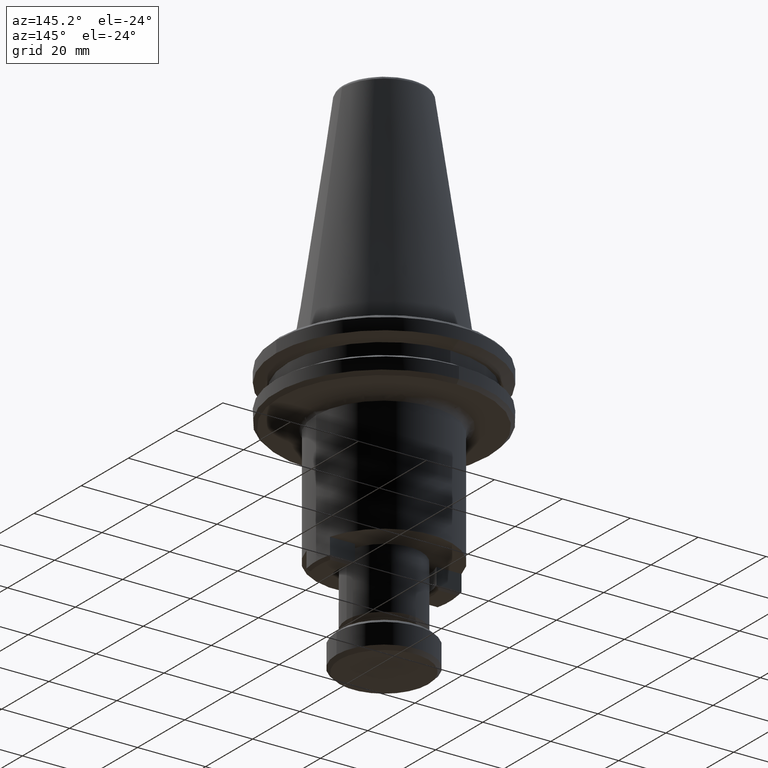
[diagram: clean part render]
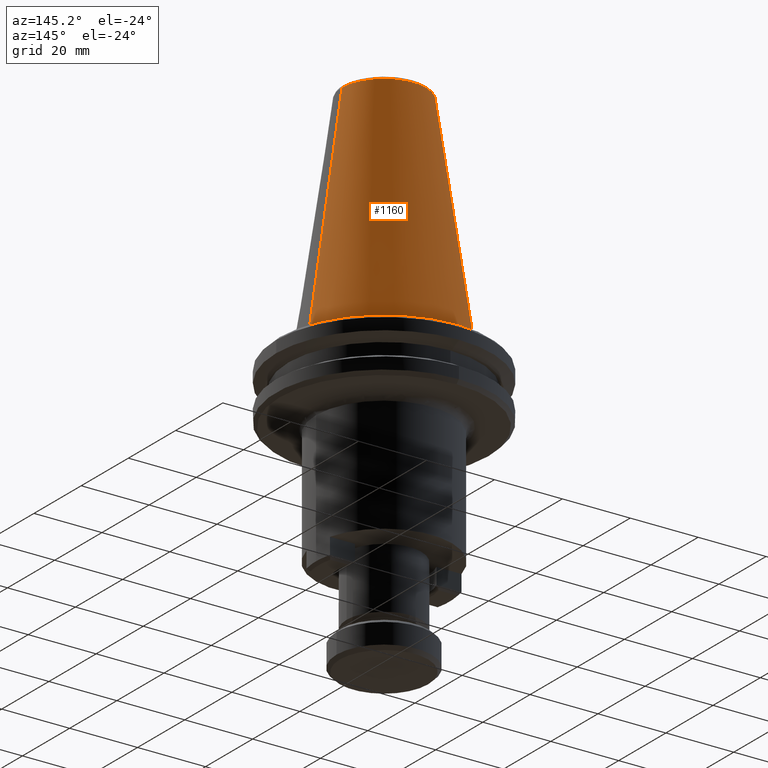
[diagram: same view with one face highlighted and labeled with its STEP entity id]
A machine part, auxiliary view. The second image highlights one B-rep face of the part: STEP entity #1160.
In plain terms, the highlighted conical surface has half-angle 8.297 deg.
Its self-contained STEP definition (entity closure, byte-faithful):
#20 = DIRECTION ( 'NONE',  ( 0.0000000000000000000, 0.0000000000000000000, -1.000000000000000000 ) ) ;
#55 = CARTESIAN_POINT ( 'NONE',  ( 73.31616413349898700, 86.06069101126570300, 154.8121138350913100 ) ) ;
#73 = CARTESIAN_POINT ( 'NONE',  ( 85.69085950949899200, 86.06069101126570300, 154.8121138350913100 ) ) ;
#187 = VERTEX_POINT ( 'NONE', #2088 ) ;
#256 = LINE ( 'NONE', #1892, #395 ) ;
#273 = ORIENTED_EDGE ( 'NONE', *, *, #2254, .T. ) ;
#351 = DIRECTION ( 'NONE',  ( -1.000000000000000000, 0.0000000000000000000, 0.0000000000000000000 ) ) ;
#395 = VECTOR ( 'NONE', #2042, 1000.000000000000100 ) ;
#479 = VERTEX_POINT ( 'NONE', #827 ) ;
#488 = DIRECTION ( 'NONE',  ( -1.000000000000000000, 0.0000000000000000000, 0.0000000000000000000 ) ) ;
#506 = CARTESIAN_POINT ( 'NONE',  ( 73.31616413349898700, 86.06069101126570300, 87.26780560809130800 ) ) ;
#584 = CARTESIAN_POINT ( 'NONE',  ( 73.31616413349898700, 86.06069101126570300, 87.26780560809130800 ) ) ;
#608 = DIRECTION ( 'NONE',  ( -0.0000000000000000000, -0.0000000000000000000, 1.000000000000000000 ) ) ;
#637 = CIRCLE ( 'NONE', #895, 22.22499999999999400 ) ;
#771 = CONICAL_SURFACE ( 'NONE', #2452, 22.22499999999999400, 0.1448138465495947800 ) ;
#827 = CARTESIAN_POINT ( 'NONE',  ( 60.94146875749899600, 86.06069101126570300, 154.8121138350913100 ) ) ;
#857 = FACE_OUTER_BOUND ( 'NONE', #2389, .T. ) ;
#895 = AXIS2_PLACEMENT_3D ( 'NONE', #584, #608, #1179 ) ;
#1144 = CIRCLE ( 'NONE', #1186, 12.37469537600000000 ) ;
#1158 = DIRECTION ( 'NONE',  ( 0.0000000000000000000, 0.0000000000000000000, -1.000000000000000000 ) ) ;
#1160 = ADVANCED_FACE ( 'NONE', ( #857 ), #771, .T. ) ;
#1179 = DIRECTION ( 'NONE',  ( -1.000000000000000000, 0.0000000000000000000, 0.0000000000000000000 ) ) ;
#1186 = AXIS2_PLACEMENT_3D ( 'NONE', #55, #20, #351 ) ;
#1219 = DIRECTION ( 'NONE',  ( -0.1443082272694599400, 0.0000000000000000000, -0.9895327864918603800 ) ) ;
#1229 = CARTESIAN_POINT ( 'NONE',  ( 51.09116413349899900, 86.06069101126570300, 87.26780560809130800 ) ) ;
#1278 = CARTESIAN_POINT ( 'NONE',  ( 51.09116413349899900, 86.06069101126570300, 87.26780560809130800 ) ) ;
#1514 = VERTEX_POINT ( 'NONE', #1278 ) ;
#1533 = EDGE_CURVE ( 'NONE', #479, #1514, #1617, .T. ) ;
#1609 = VECTOR ( 'NONE', #1219, 1000.000000000000100 ) ;
#1617 = LINE ( 'NONE', #1229, #1609 ) ;
#1730 = VERTEX_POINT ( 'NONE', #73 ) ;
#1892 = CARTESIAN_POINT ( 'NONE',  ( 95.54116413349898100, 86.06069101126570300, 87.26780560809130800 ) ) ;
#1916 = EDGE_CURVE ( 'NONE', #479, #1730, #1144, .T. ) ;
#2042 = DIRECTION ( 'NONE',  ( 0.1443082272694599400, 1.767266086161729200E-017, -0.9895327864918603800 ) ) ;
#2088 = CARTESIAN_POINT ( 'NONE',  ( 95.54116413349898100, 86.06069101126570300, 87.26780560809130800 ) ) ;
#2238 = EDGE_CURVE ( 'NONE', #1730, #187, #256, .T. ) ;
#2252 = ORIENTED_EDGE ( 'NONE', *, *, #1916, .T. ) ;
#2254 = EDGE_CURVE ( 'NONE', #187, #1514, #637, .T. ) ;
#2389 = EDGE_LOOP ( 'NONE', ( #2252, #2419, #273, #2533 ) ) ;
#2419 = ORIENTED_EDGE ( 'NONE', *, *, #2238, .T. ) ;
#2452 = AXIS2_PLACEMENT_3D ( 'NONE', #506, #1158, #488 ) ;
#2533 = ORIENTED_EDGE ( 'NONE', *, *, #1533, .F. ) ;